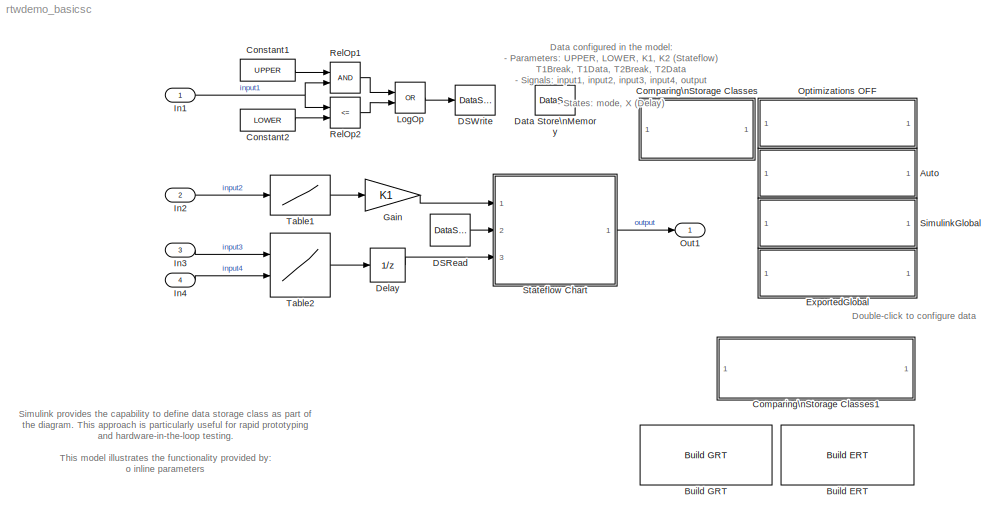
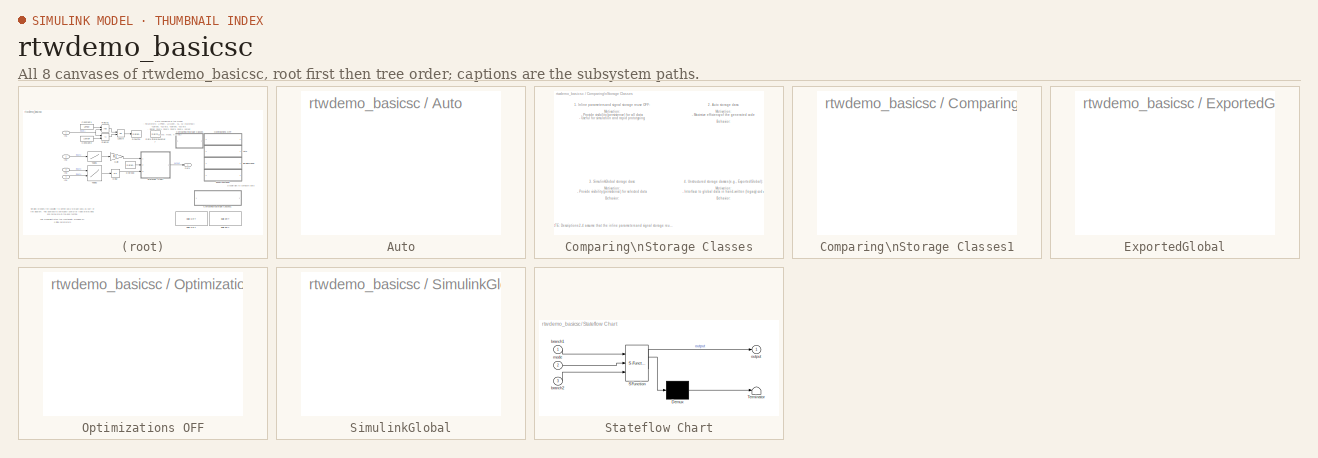
[diagram: thumbnail index - all 8 canvases of the model, root first then tree order]
MODEL rtwdemo_basicsc
KIND model
CONFIG PostLoadFcn = open_system('rtwdemo_basicsc/Auto');
BLOCK [SubSystem] Auto
  MaskCallbackString = if strcmp(get_param(gcb, 'Optimizations'), 'off')\n  set_param(gcb, 'MaskEnableString', 'on,off,on');\nelse\n  set_param(gcb, 'MaskEnableString', 'on,on,on');\nend||
  MaskDescription = OpenFcn configures model for data packaging demo.
  MaskDisplay = disp(dispStr);
  MaskEnableString = on,off,on
  MaskIconFrame = on
  MaskIconOpaque = on
  MaskIconRotate = none
  MaskIconUnits = autoscale
  MaskInitialization = if strcmp(Optimizations, 'on')\n  dispStr = [StorageClass, '\\nStorage Class'];\nelse\n  set_param(gcb, 'StorageClass', 'Auto');\n  dispStr = ['InlineParameters OFF\\n', ...\n		     'SignalStorageReuse OFF'];\nend\n  <repeated x4 — deduplicated; at blocks: Auto, ExportedGlobal, Optimizations OFF, SimulinkGlobal>
  MaskPromptString = Use Optimizations|StorageClass|DataInitFcn
  MaskStyleString = checkbox,popup(Auto|SimulinkGlobal|ExportedGlobal),edit
  MaskTabNameString = ,,
  MaskToolTipString = on,on,on
  MaskTunableValueString = off,off,off
  MaskType = Basic data packaging - configure model
  MaskValueString = on|Auto|rtwdemo_basicsc_config
  MaskVarAliasString = ,,
  MaskVariables = Optimizations=&1;StorageClass=&2;DataInitFcn=&3;
  MaskVisibilityString = on,on,on
  MinAlgLoopOccurrences = off
  OpenFcn = feval(get_param(gcb, 'DataInitFcn'), bdroot(gcb), get_param(gcb, 'Optimizations'), get_param(gcb, 'StorageClass'));
  Ports = []
  PropExecContextAcrossSSBoundary = on
  RTWSystemCode = Auto
  TreatAsAtomicUnit = off
BLOCK [Reference] Build ERT  REF=rtwdemowidgets/Build ERT
  Ports = []
  ShowPortLabels = on
  SourceBlock = rtwdemowidgets/Build ERT
  attrib_overrides = {}
BLOCK [Reference] Build GRT  REF=rtwdemowidgets/Build GRT
  Ports = []
  ShowPortLabels = on
  SourceBlock = rtwdemowidgets/Build GRT
  attrib_overrides = {}
BLOCK [SubSystem] Comparing\nStorage Classes
  MaskDisplay = disp(['Compare the\\noptions ..', '.\\n(double-click)']);
  MaskIconFrame = on
  MaskIconOpaque = on
  MaskIconRotate = none
  MaskIconUnits = autoscale
  MinAlgLoopOccurrences = off
  Ports = []
  PropExecContextAcrossSSBoundary = on
  RTWSystemCode = Auto
  TreatAsAtomicUnit = off
BLOCK [SubSystem] Comparing\nStorage Classes1
  MaskDisplay = disp(['Advanced data packaging using\\nSimulink data objects ..', '.\\n(double-click)']);
  MaskIconFrame = on
  MaskIconOpaque = on
  MaskIconRotate = none
  MaskIconUnits = autoscale
  MinAlgLoopOccurrences = off
  OpenFcn = rtwdemo_advsc
  Ports = []
  PropExecContextAcrossSSBoundary = on
  RTWSystemCode = Auto
  TreatAsAtomicUnit = off
BLOCK [Constant] Constant1
  Value = UPPER
BLOCK [Constant] Constant2
  Value = LOWER
BLOCK [DataStoreRead] DSRead
  DataStoreName = mode
  DialogController = Simulink.DDGSource
  SampleTime = 1
BLOCK [DataStoreWrite] DSWrite
  DataStoreName = mode
  DialogController = Simulink.DDGSource
  SampleTime = -1
BLOCK [DataStoreMemory] Data Store\nMemory
  DataStoreName = mode
  DialogController = Simulink.DDGSource
  InitialValue = 0
  RTWStateStorageClass = Auto
  ShowAdditionalParam = off
  VectorParams1D = on
BLOCK [UnitDelay] Delay
  StateIdentifier = X
BLOCK [SubSystem] ExportedGlobal
  MaskCallbackString = if strcmp(get_param(gcb, 'Optimizations'), 'off')\n  set_param(gcb, 'MaskEnableString', 'on,off,on');\nelse\n  set_param(gcb, 'MaskEnableString', 'on,on,on');\nend||
  MaskDescription = OpenFcn configures model for data packaging demo.
  MaskDisplay = disp(dispStr);
  MaskEnableString = on,off,on
  MaskIconFrame = on
  MaskIconOpaque = on
  MaskIconRotate = none
  MaskIconUnits = autoscale
  MaskPromptString = Use Optimizations|StorageClass|DataInitFcn
  MaskStyleString = checkbox,popup(Auto|SimulinkGlobal|ExportedGlobal),edit
  MaskTabNameString = ,,
  MaskToolTipString = on,on,on
  MaskTunableValueString = off,off,off
  MaskType = Basic data packaging - configure model
  MaskValueString = on|ExportedGlobal|rtwdemo_basicsc_config
  MaskVarAliasString = ,,
  MaskVariables = Optimizations=&1;StorageClass=&2;DataInitFcn=&3;
  MaskVisibilityString = on,on,on
  MinAlgLoopOccurrences = off
  OpenFcn = feval(get_param(gcb, 'DataInitFcn'), bdroot(gcb), get_param(gcb, 'Optimizations'), get_param(gcb, 'StorageClass'));
  Ports = []
  PropExecContextAcrossSSBoundary = on
  RTWSystemCode = Auto
  TreatAsAtomicUnit = off
BLOCK [Gain] Gain
  Gain = K1
BLOCK [Inport] In1
  IconDisplay = Port number
  LatchInput = off
  Port = 1
  PortDimensions = 1
  SampleTime = 1
BLOCK [Inport] In2
  IconDisplay = Port number
  LatchInput = off
  Port = 2
  PortDimensions = 1
BLOCK [Inport] In3
  IconDisplay = Port number
  LatchInput = off
  Port = 3
  PortDimensions = 1
BLOCK [Inport] In4
  IconDisplay = Port number
  LatchInput = off
  Port = 4
  PortDimensions = 1
BLOCK [Logic] LogOp
  Operator = OR
  Ports = [2, 1]
BLOCK [SubSystem] Optimizations OFF
  MaskCallbackString = if strcmp(get_param(gcb, 'Optimizations'), 'off')\n  set_param(gcb, 'MaskEnableString', 'on,off,on');\nelse\n  set_param(gcb, 'MaskEnableString', 'on,on,on');\nend||
  MaskDescription = OpenFcn configures model for data packaging demo.
  MaskDisplay = disp(dispStr);
  MaskEnableString = on,off,on
  MaskIconFrame = on
  MaskIconOpaque = on
  MaskIconRotate = none
  MaskIconUnits = autoscale
  MaskPromptString = Use Optimizations|StorageClass|DataInitFcn
  MaskStyleString = checkbox,popup(Auto|SimulinkGlobal|ExportedGlobal),edit
  MaskTabNameString = ,,
  MaskToolTipString = on,on,on
  MaskTunableValueString = off,off,off
  MaskType = Basic data packaging - configure model
  MaskValueString = off|Auto|rtwdemo_basicsc_config
  MaskVarAliasString = ,,
  MaskVariables = Optimizations=&1;StorageClass=&2;DataInitFcn=&3;
  MaskVisibilityString = on,on,on
  MinAlgLoopOccurrences = off
  OpenFcn = feval(get_param(gcb, 'DataInitFcn'), bdroot(gcb), get_param(gcb, 'Optimizations'), get_param(gcb, 'StorageClass'));
  Ports = []
  PropExecContextAcrossSSBoundary = on
  RTWSystemCode = Auto
  TreatAsAtomicUnit = off
BLOCK [Outport] Out1
  BusOutputAsStruct = off
  IconDisplay = Port number
BLOCK [RelationalOperator] RelOp1
BLOCK [RelationalOperator] RelOp2
  Operator = <=
BLOCK [SubSystem] SimulinkGlobal
  MaskCallbackString = if strcmp(get_param(gcb, 'Optimizations'), 'off')\n  set_param(gcb, 'MaskEnableString', 'on,off,on');\nelse\n  set_param(gcb, 'MaskEnableString', 'on,on,on');\nend||
  MaskDescription = OpenFcn configures model for data packaging demo.
  MaskDisplay = disp(dispStr);
  MaskEnableString = on,off,on
  MaskIconFrame = on
  MaskIconOpaque = on
  MaskIconRotate = none
  MaskIconUnits = autoscale
  MaskPromptString = Use Optimizations|StorageClass|DataInitFcn
  MaskStyleString = checkbox,popup(Auto|SimulinkGlobal|ExportedGlobal),edit
  MaskTabNameString = ,,
  MaskToolTipString = on,on,on
  MaskTunableValueString = off,off,off
  MaskType = Basic data packaging - configure model
  MaskValueString = on|SimulinkGlobal|rtwdemo_basicsc_config
  MaskVarAliasString = ,,
  MaskVariables = Optimizations=&1;StorageClass=&2;DataInitFcn=&3;
  MaskVisibilityString = on,on,on
  MinAlgLoopOccurrences = off
  OpenFcn = feval(get_param(gcb, 'DataInitFcn'), bdroot(gcb), get_param(gcb, 'Optimizations'), get_param(gcb, 'StorageClass'));
  Ports = []
  PropExecContextAcrossSSBoundary = on
  RTWSystemCode = Auto
  TreatAsAtomicUnit = off
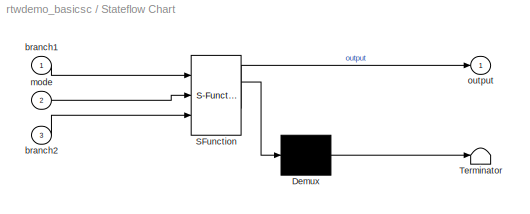
BLOCK [SubSystem] Stateflow Chart
  MaskDescription = Stateflow diagram
  MaskDisplay = plot(sf('Private','sfblk','xIcon'),sf('Private','sfblk','yIcon'));text(0.5,0,sf('Private', 'sfblk', 'tIcon'),'HorizontalAl','Center','VerticalAl','Bottom');
  MaskIconFrame = off
  MaskIconOpaque = off
  MaskIconRotate = none
  MaskIconUnits = autoscale
  MaskSelfModifiable = on
  MaskType = Stateflow
  MinAlgLoopOccurrences = off
  PermitHierarchicalResolution = ParametersOnly
  Ports = [3, 1]
  PropExecContextAcrossSSBoundary = on
  RTWSystemCode = Auto
  TreatAsAtomicUnit = off
BLOCK [Demux] Stateflow Chart/ Demux 
  Outputs = 1
  Ports = [1, 1]
BLOCK [S-Function] Stateflow Chart/ SFunction 
  FunctionName = sf_sfun
  Parameters = K2
  PortCounts = [3 2]
  Ports = [3, 2]
  Tag = Stateflow S-Function rtwdemo_basicsc 1
BLOCK [Terminator] Stateflow Chart/ Terminator 
BLOCK [Inport] Stateflow Chart/branch1
  IconDisplay = Port number
  LatchInput = off
  Port = 1
BLOCK [Inport] Stateflow Chart/branch2
  IconDisplay = Port number
  LatchInput = off
  Port = 3
BLOCK [Inport] Stateflow Chart/mode
  IconDisplay = Port number
  LatchInput = off
  Port = 2
BLOCK [Outport] Stateflow Chart/output
  BusOutputAsStruct = off
  IconDisplay = Port number
BLOCK [Lookup] Table1
  DialogController = Simulink.DDGSource
  InputValues = T1Break
  OutputValues = T1Data
BLOCK [Lookup2D] Table2
  ColumnIndex = T2Break
  DialogController = Simulink.DDGSource
  OutScaling = 2^-10
  OutputValues = T2Data
  RowIndex = T2Break
  SaturateOnIntegerOverflow = off
ANNOTATION (root): Data configured in the model:\n- Parameters: UPPER, LOWER, K1, K2 (Stateflow)\n T1Break, T1Data, T2Break, T2Data\n- Signals: input1, input2, input3, input4, output\n- States: mode, X (Delay)
ANNOTATION (root): Double-click to configure data
ANNOTATION (root): Simulink provides the capability to define data storage class as part of \nthe diagram. This approach is particularly useful for rapid prototyping \nand hardware-in-the-loop testing. \n\nThis model illustrates the functionality provided by:\no inline parameters\no signal storage reuse\no built-in data storage classes
ANNOTATION Comparing\nStorage Classes: 1. Inline parameters and signal storage reuse OFF:\n\nMotivation:\n- Provide visibility (persistence) for all data\n- Useful for simulation and rapid prototyping\n\nBehavior:\n- All parameters and signals are members of persistent data structures\n- All states and root-level I/O are members of persistent data structures \n\nAdvantages:\n- Easy access to data via model-wide settings\n\nDisadvantage...<+76ch>
ANNOTATION Comparing\nStorage Classes: 2. Auto storage class:\n\nMotivation:\n- Maximize efficiency of the generated code\n\nBehavior:\n- Parameters are inlined and intermediate signals are eliminated\n- All states and root-level I/O are members of persistent data structures\n\nAdvantages:\n- Optimized code generation\n- Default behavior when optimizations enabled (easy to use)\n\nDisadvantages:\n- Parameters and signals do not appear ...<+39ch>
ANNOTATION Comparing\nStorage Classes: 3. SimulinkGlobal storage class:\n\nMotivation:\n- Provide visibility (persistence) for selected data\n\nBehavior:\n- Select parameters and signals are members of persistent data structures \n- All states and root-level I/O are members of persistent data structures\n\nAdvantages:\n- Only increase memory usage for data of interest\n- Provides visibility to data without limitations\n\nDisadvantages:...<+193ch>
ANNOTATION Comparing\nStorage Classes: 4. Unstructured storage classes (e.g., ExportedGlobal):\n\nMotivation:\n- Interface to global data in hand-written (legacy) code\n\nBehavior:\n- Select parameters and signals are global, unstructured variables\n- Select states and root-level I/O are global, unstructured variables \n\nAdvantages:\n- Data names are preserved in the generated code\n\nDisadvantages:\n- Imposes certain modeling restric...<+56ch>
ANNOTATION Comparing\nStorage Classes: NOTE: Descriptions 2-4 assume that the inline parameters and signal storage reuse optimizations are ON.
LINE Constant1:1 -> RelOp1:1
LINE Constant2:1 -> RelOp2:2
LINE DSRead:1 -> Stateflow Chart:2
LINE Delay:1 -> Stateflow Chart:3
LINE Gain:1 -> Stateflow Chart:1
NET In1:1 -> RelOp1:2, RelOp2:1
LINE In2:1 -> Table1:1
LINE In3:1 -> Table2:1
LINE In4:1 -> Table2:2
LINE LogOp:1 -> DSWrite:1
LINE RelOp1:1 -> LogOp:1
LINE RelOp2:1 -> LogOp:2
LINE Stateflow Chart/ Demux :1 -> Stateflow Chart/ Terminator :1
LINE Stateflow Chart/ SFunction :1 -> Stateflow Chart/ Demux :1
LINE Stateflow Chart/ SFunction :2 -> Stateflow Chart/output:1
LINE Stateflow Chart/branch1:1 -> Stateflow Chart/ SFunction :1
LINE Stateflow Chart/branch2:1 -> Stateflow Chart/ SFunction :3
LINE Stateflow Chart/mode:1 -> Stateflow Chart/ SFunction :2
LINE Stateflow Chart:1 -> Out1:1
LINE Table1:1 -> Gain:1
LINE Table2:1 -> Delay:1
note: NET lines group one-source signal fan-out (src -> all destinations, sorted); 1:1 wires keep LINE
CHART Stateflow Chart states=1 transitions=5
  STATE_LABEL 'This chart is acting as an if-else condition,\\n    with the result multiplied by K2.\\nUsing a Simulink switch (or if-action) and gain block,\\n    results in virtually identical code.'
